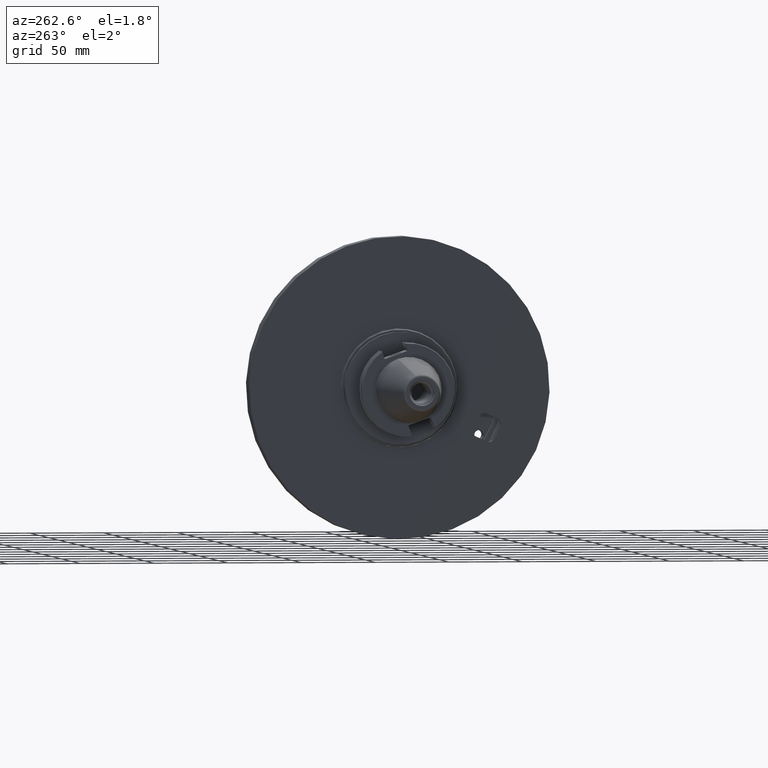
[diagram: clean part render]
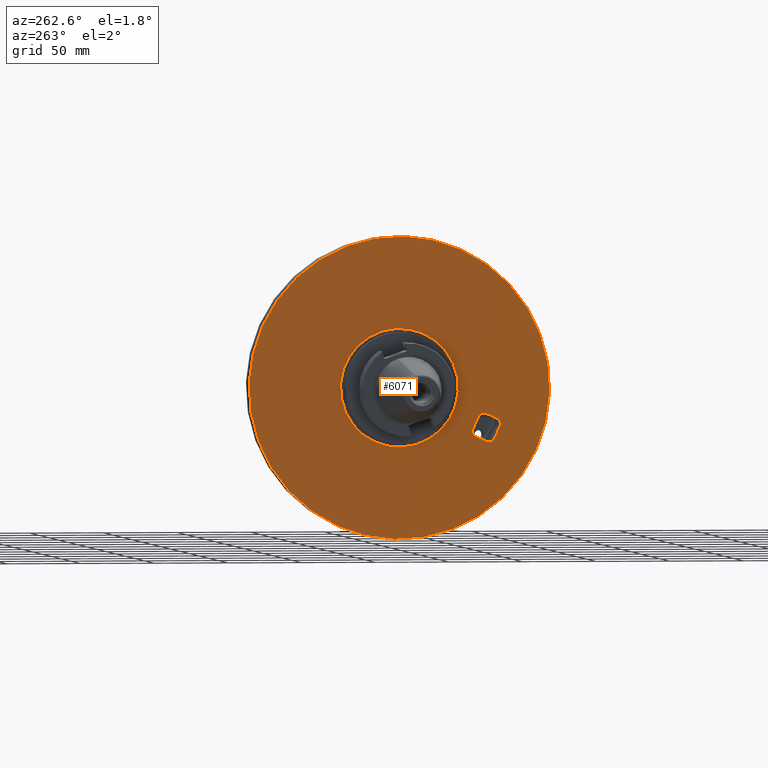
[diagram: same view with one face highlighted and labeled with its STEP entity id]
A machine part, auxiliary view. The second image highlights one B-rep face of the part: STEP entity #6071.
In plain terms, the highlighted planar face has unit normal (-1, 0, 0).
Its self-contained STEP definition (entity closure, byte-faithful):
#250=FACE_BOUND('',#1282,.T.);
#251=FACE_BOUND('',#1283,.T.);
#835=FACE_OUTER_BOUND('',#1281,.T.);
#1281=EDGE_LOOP('',(#5455));
#1282=EDGE_LOOP('',(#5456,#5457,#5458,#5459,#5460,#5461,#5462,#5463));
#1283=EDGE_LOOP('',(#5464));
#1646=CIRCLE('',#6855,102.);
#1647=CIRCLE('',#6857,4.);
#1648=CIRCLE('',#6858,4.);
#1649=CIRCLE('',#6859,4.);
#1650=CIRCLE('',#6860,4.);
#1651=CIRCLE('',#6861,40.);
#1991=LINE('',#11241,#2335);
#1992=LINE('',#11245,#2336);
#1993=LINE('',#11249,#2337);
#1994=LINE('',#11253,#2338);
#2335=VECTOR('',#8611,8.);
#2336=VECTOR('',#8614,9.);
#2337=VECTOR('',#8617,8.);
#2338=VECTOR('',#8620,9.);
#2904=VERTEX_POINT('',#11235);
#2905=VERTEX_POINT('',#11239);
#2906=VERTEX_POINT('',#11240);
#2907=VERTEX_POINT('',#11242);
#2908=VERTEX_POINT('',#11244);
#2909=VERTEX_POINT('',#11246);
#2910=VERTEX_POINT('',#11248);
#2911=VERTEX_POINT('',#11250);
#2912=VERTEX_POINT('',#11252);
#2913=VERTEX_POINT('',#11255);
#3759=EDGE_CURVE('',#2904,#2904,#1646,.T.);
#3761=EDGE_CURVE('',#2905,#2906,#1991,.T.);
#3762=EDGE_CURVE('',#2905,#2907,#1647,.T.);
#3763=EDGE_CURVE('',#2908,#2907,#1992,.T.);
#3764=EDGE_CURVE('',#2908,#2909,#1648,.T.);
#3765=EDGE_CURVE('',#2910,#2909,#1993,.T.);
#3766=EDGE_CURVE('',#2910,#2911,#1649,.T.);
#3767=EDGE_CURVE('',#2912,#2911,#1994,.T.);
#3768=EDGE_CURVE('',#2912,#2906,#1650,.T.);
#3769=EDGE_CURVE('',#2913,#2913,#1651,.T.);
#5455=ORIENTED_EDGE('',*,*,#3759,.F.);
#5456=ORIENTED_EDGE('',*,*,#3761,.F.);
#5457=ORIENTED_EDGE('',*,*,#3762,.T.);
#5458=ORIENTED_EDGE('',*,*,#3763,.F.);
#5459=ORIENTED_EDGE('',*,*,#3764,.T.);
#5460=ORIENTED_EDGE('',*,*,#3765,.F.);
#5461=ORIENTED_EDGE('',*,*,#3766,.T.);
#5462=ORIENTED_EDGE('',*,*,#3767,.F.);
#5463=ORIENTED_EDGE('',*,*,#3768,.T.);
#5464=ORIENTED_EDGE('',*,*,#3769,.T.);
#5712=PLANE('',#6856);
#6071=ADVANCED_FACE('',(#835,#250,#251),#5712,.T.);
#6855=AXIS2_PLACEMENT_3D('',#11236,#8606,#8607);
#6856=AXIS2_PLACEMENT_3D('',#11238,#8609,#8610);
#6857=AXIS2_PLACEMENT_3D('',#11243,#8612,#8613);
#6858=AXIS2_PLACEMENT_3D('',#11247,#8615,#8616);
#6859=AXIS2_PLACEMENT_3D('',#11251,#8618,#8619);
#6860=AXIS2_PLACEMENT_3D('',#11254,#8621,#8622);
#6861=AXIS2_PLACEMENT_3D('',#11256,#8623,#8624);
#8606=DIRECTION('center_axis',(1.,0.,0.));
#8607=DIRECTION('ref_axis',(0.,1.,0.));
#8609=DIRECTION('center_axis',(-1.,0.,0.));
#8610=DIRECTION('ref_axis',(0.,0.,1.));
#8611=DIRECTION('',(0.,1.,0.));
#8612=DIRECTION('center_axis',(1.,0.,0.));
#8613=DIRECTION('ref_axis',(0.,0.,1.));
#8614=DIRECTION('',(0.,0.,1.));
#8615=DIRECTION('center_axis',(1.,0.,0.));
#8616=DIRECTION('ref_axis',(0.,-1.,0.));
#8617=DIRECTION('',(0.,-1.,0.));
#8618=DIRECTION('center_axis',(1.,0.,0.));
#8619=DIRECTION('ref_axis',(0.,0.,-1.));
#8620=DIRECTION('',(0.,0.,-1.));
#8621=DIRECTION('center_axis',(1.,0.,0.));
#8622=DIRECTION('ref_axis',(0.,1.,0.));
#8623=DIRECTION('center_axis',(1.,0.,0.));
#8624=DIRECTION('ref_axis',(0.,0.,1.));
#11235=CARTESIAN_POINT('',(14.,-102.,-1.50990331349E-14));
#11236=CARTESIAN_POINT('Origin',(14.,0.,0.));
#11238=CARTESIAN_POINT('Origin',(14.,43.625,0.));
#11239=CARTESIAN_POINT('',(14.,-69.,8.5));
#11240=CARTESIAN_POINT('',(14.,-61.,8.5));
#11241=CARTESIAN_POINT('',(14.,-69.,8.5));
#11242=CARTESIAN_POINT('',(14.,-73.,4.5));
#11243=CARTESIAN_POINT('Origin',(14.,-69.,4.5));
#11244=CARTESIAN_POINT('',(14.,-73.,-4.5));
#11245=CARTESIAN_POINT('',(14.,-73.,-4.5));
#11246=CARTESIAN_POINT('',(14.,-69.,-8.5));
#11247=CARTESIAN_POINT('Origin',(14.,-69.,-4.5));
#11248=CARTESIAN_POINT('',(14.,-61.,-8.5));
#11249=CARTESIAN_POINT('',(14.,-61.,-8.5));
#11250=CARTESIAN_POINT('',(14.,-57.,-4.5));
#11251=CARTESIAN_POINT('Origin',(14.,-61.,-4.5));
#11252=CARTESIAN_POINT('',(14.,-57.,4.5));
#11253=CARTESIAN_POINT('',(14.,-57.,4.5));
#11254=CARTESIAN_POINT('Origin',(14.,-61.,4.5));
#11255=CARTESIAN_POINT('',(14.,0.,-40.));
#11256=CARTESIAN_POINT('Origin',(14.,0.,0.));